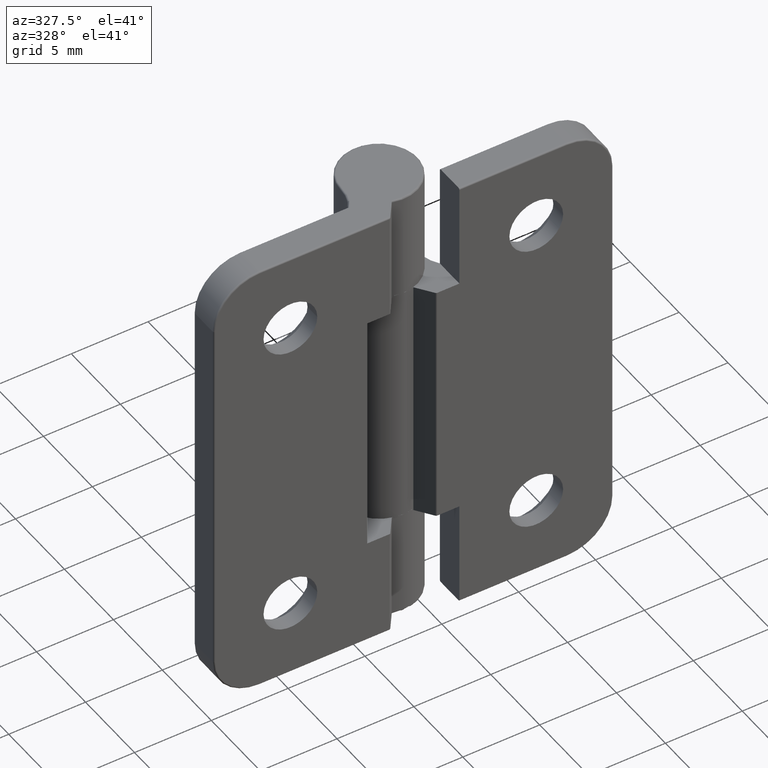
[diagram: clean part render]
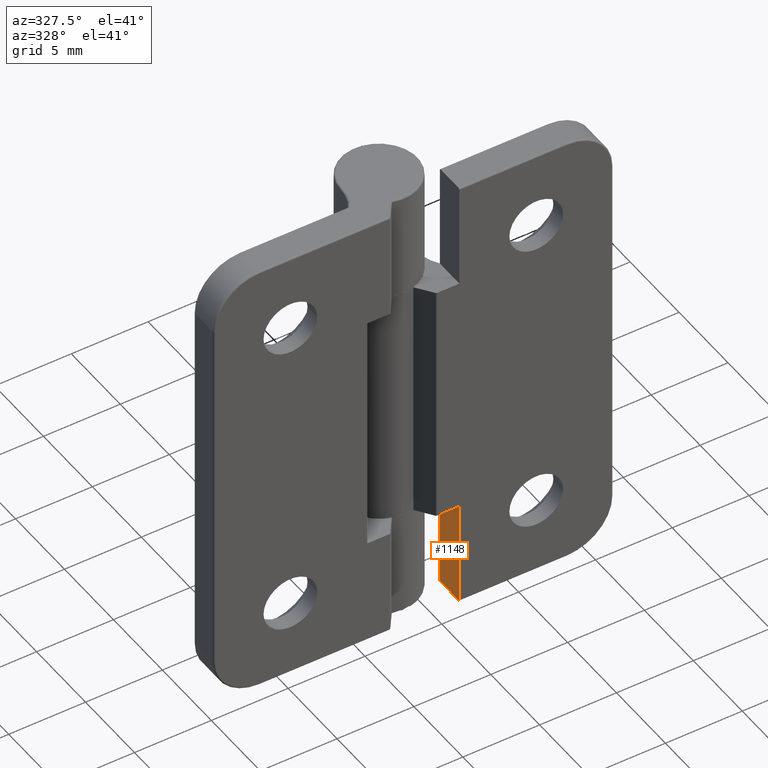
[diagram: same view with one face highlighted and labeled with its STEP entity id]
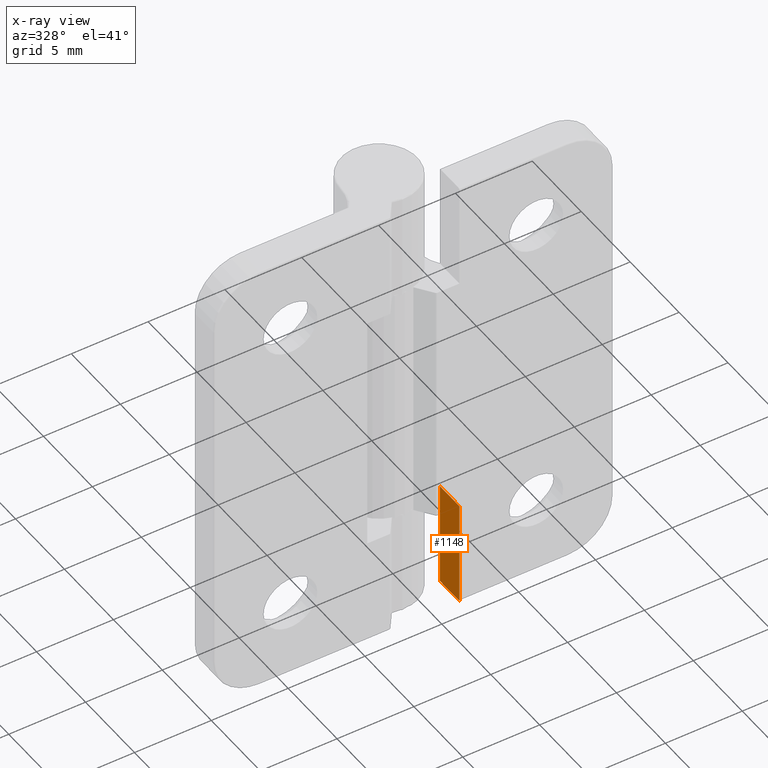
[diagram: x-ray of the same camera — body ghosted, the highlighted face saturated]
A machine part, auxiliary view. The second image highlights one B-rep face of the part: STEP entity #1148.
The next image is the same camera in x-ray: the body ghosted, the highlighted face saturated — about 0% of this face is hidden behind the body in this view.
In plain terms, the highlighted planar face has unit normal (1, 0, -0).
Its self-contained STEP definition (entity closure, byte-faithful):
#169=CIRCLE('',#1280,0.1);
#170=CIRCLE('',#1281,0.1);
#241=FACE_OUTER_BOUND('',#329,.T.);
#329=EDGE_LOOP('',(#959,#960,#961,#962,#963,#964));
#414=LINE('',#2001,#484);
#415=LINE('',#2003,#485);
#416=LINE('',#2005,#486);
#417=LINE('',#2009,#487);
#484=VECTOR('',#1584,6.8);
#485=VECTOR('',#1585,2.);
#486=VECTOR('',#1586,6.8);
#487=VECTOR('',#1589,1.8);
#578=VERTEX_POINT('',#1999);
#579=VERTEX_POINT('',#2000);
#580=VERTEX_POINT('',#2002);
#581=VERTEX_POINT('',#2004);
#582=VERTEX_POINT('',#2006);
#583=VERTEX_POINT('',#2008);
#713=EDGE_CURVE('',#578,#579,#414,.T.);
#714=EDGE_CURVE('',#580,#578,#415,.T.);
#715=EDGE_CURVE('',#580,#581,#416,.T.);
#716=EDGE_CURVE('',#582,#581,#169,.T.);
#717=EDGE_CURVE('',#583,#582,#417,.T.);
#718=EDGE_CURVE('',#579,#583,#170,.T.);
#959=ORIENTED_EDGE('',*,*,#713,.F.);
#960=ORIENTED_EDGE('',*,*,#714,.F.);
#961=ORIENTED_EDGE('',*,*,#715,.T.);
#962=ORIENTED_EDGE('',*,*,#716,.F.);
#963=ORIENTED_EDGE('',*,*,#717,.F.);
#964=ORIENTED_EDGE('',*,*,#718,.F.);
#1096=PLANE('',#1279);
#1148=ADVANCED_FACE('',(#241),#1096,.F.);
#1279=AXIS2_PLACEMENT_3D('',#1998,#1582,#1583);
#1280=AXIS2_PLACEMENT_3D('',#2007,#1587,#1588);
#1281=AXIS2_PLACEMENT_3D('',#2010,#1590,#1591);
#1582=DIRECTION('center_axis',(-1.,0.,1.77068165512974E-16));
#1583=DIRECTION('ref_axis',(1.77635683940025E-16,0.,1.));
#1584=DIRECTION('',(1.77068165512974E-16,1.28207709313462E-32,1.));
#1585=DIRECTION('',(0.,-1.,0.));
#1586=DIRECTION('',(0.,0.,1.));
#1587=DIRECTION('center_axis',(-1.,0.,1.77068165512974E-16));
#1588=DIRECTION('ref_axis',(0.,0.70710678118654,0.707106781186555));
#1589=DIRECTION('',(0.,1.,0.));
#1590=DIRECTION('center_axis',(-1.,0.,1.77068165512974E-16));
#1591=DIRECTION('ref_axis',(0.,-0.70710678118654,0.707106781186555));
#1998=CARTESIAN_POINT('Origin',(-3.,2.,8.1));
#1999=CARTESIAN_POINT('',(-3.,0.,8.1));
#2000=CARTESIAN_POINT('',(-3.,-1.10871456579507E-16,14.9));
#2001=CARTESIAN_POINT('',(-3.,-1.38777878078145E-16,4.05));
#2002=CARTESIAN_POINT('',(-3.,2.,8.1));
#2003=CARTESIAN_POINT('',(-3.,2.,8.1));
#2004=CARTESIAN_POINT('',(-3.,2.,14.9));
#2005=CARTESIAN_POINT('',(-3.,2.,0.));
#2006=CARTESIAN_POINT('',(-3.,1.9,15.));
#2007=CARTESIAN_POINT('Origin',(-3.,1.9,14.9));
#2008=CARTESIAN_POINT('',(-3.,0.1,15.));
#2009=CARTESIAN_POINT('',(-3.,2.74999999623623,15.));
#2010=CARTESIAN_POINT('Origin',(-3.,0.1,14.9));